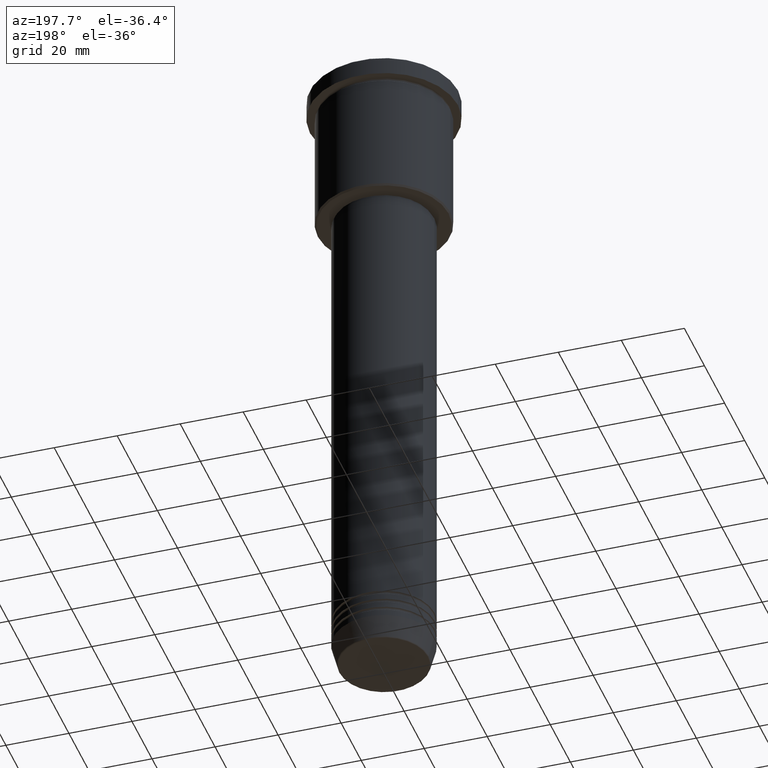
[diagram: clean part render]
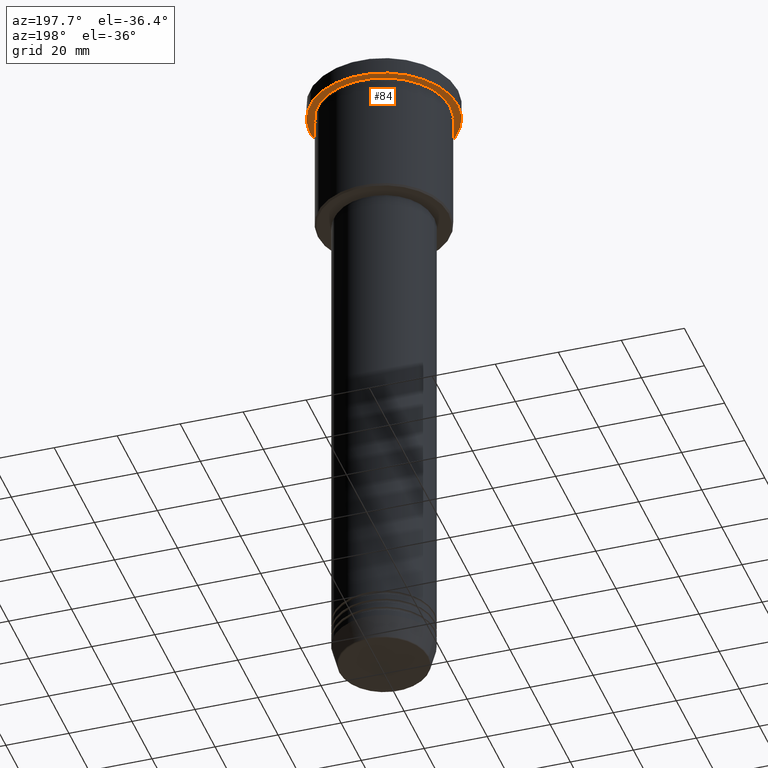
[diagram: same view with one face highlighted and labeled with its STEP entity id]
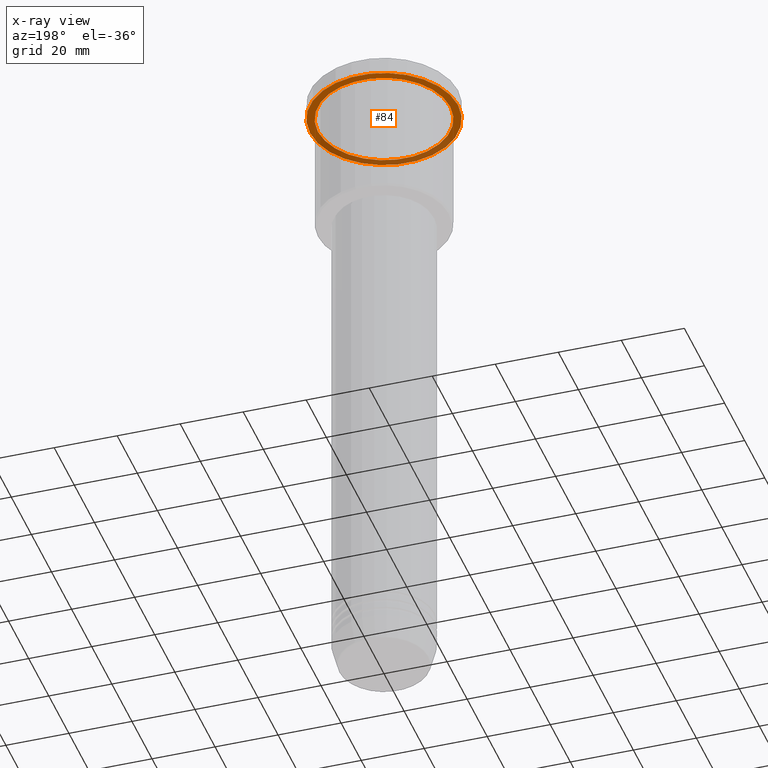
[diagram: x-ray of the same camera — body ghosted, the highlighted face saturated]
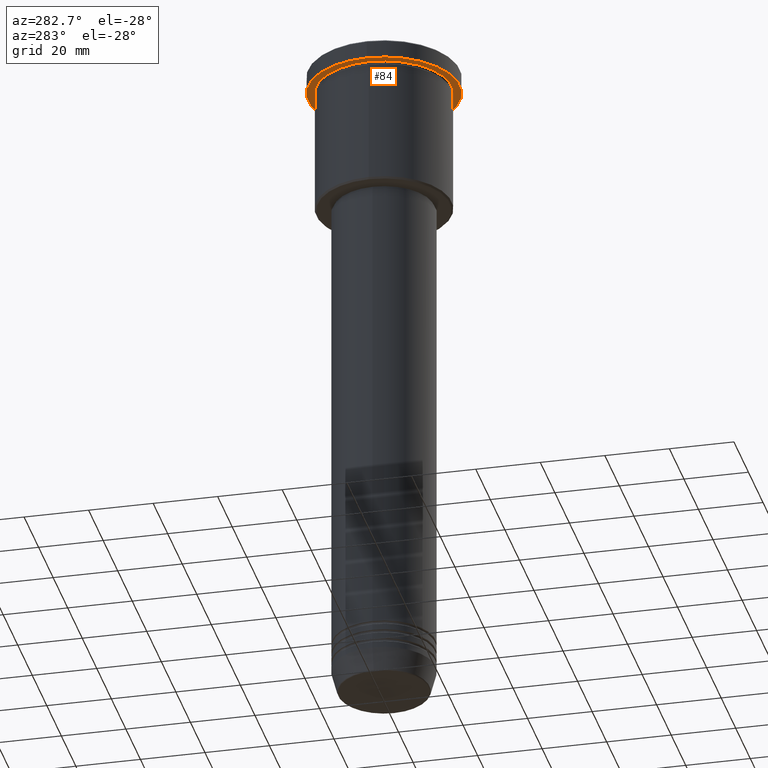
[diagram: same view with one face highlighted and labeled with its STEP entity id]
A machine part, auxiliary view. The second image highlights one B-rep face of the part: STEP entity #84.
The next image is the same camera in x-ray: the body ghosted, the highlighted face saturated — about 35% of this face is hidden behind the body in this view.
A second angle (auxiliary view) of the same face is appended — the face is thin or edge-on in the first view.
In plain terms, the highlighted planar face has unit normal (0, 0, -1).
Its self-contained STEP definition (entity closure, byte-faithful):
#3 = DIRECTION ( 'NONE',  ( -1.000000000000000000, 0.000000000000000000, 0.000000000000000000 ) ) ;
#49 = AXIS2_PLACEMENT_3D ( 'NONE', #77, #896, #820 ) ;
#77 = CARTESIAN_POINT ( 'NONE',  ( 0.000000000000000000, 0.000000000000000000, -5.999999999999994671 ) ) ;
#82 = VERTEX_POINT ( 'NONE', #181 ) ;
#84 = ADVANCED_FACE ( 'NONE', ( #1007, #545 ), #928, .T. ) ;
#89 = CIRCLE ( 'NONE', #436, 21.00000000000000000 ) ;
#95 = CARTESIAN_POINT ( 'NONE',  ( 0.000000000000000000, 0.000000000000000000, -5.999999999999994671 ) ) ;
#137 = AXIS2_PLACEMENT_3D ( 'NONE', #464, #911, #842 ) ;
#181 = CARTESIAN_POINT ( 'NONE',  ( 21.00000000000000000, 2.571758278209441661E-15, -5.999999999999994671 ) ) ;
#190 = EDGE_CURVE ( 'NONE', #601, #1139, #863, .T. ) ;
#241 = CARTESIAN_POINT ( 'NONE',  ( 0.000000000000000000, 0.000000000000000000, -5.999999999999994671 ) ) ;
#255 = ORIENTED_EDGE ( 'NONE', *, *, #862, .T. ) ;
#314 = VERTEX_POINT ( 'NONE', #912 ) ;
#350 = EDGE_LOOP ( 'NONE', ( #255, #391 ) ) ;
#378 = AXIS2_PLACEMENT_3D ( 'NONE', #241, #503, #1071 ) ;
#391 = ORIENTED_EDGE ( 'NONE', *, *, #692, .T. ) ;
#410 = CARTESIAN_POINT ( 'NONE',  ( 23.50000000000000000, 0.000000000000000000, -5.999999999999994671 ) ) ;
#436 = AXIS2_PLACEMENT_3D ( 'NONE', #638, #1179, #3 ) ;
#464 = CARTESIAN_POINT ( 'NONE',  ( 0.000000000000000000, 23.50000000000000000, -5.999999999999994671 ) ) ;
#503 = DIRECTION ( 'NONE',  ( -0.000000000000000000, -0.000000000000000000, 1.000000000000000000 ) ) ;
#545 = FACE_OUTER_BOUND ( 'NONE', #1174, .T. ) ;
#573 = ORIENTED_EDGE ( 'NONE', *, *, #848, .F. ) ;
#601 = VERTEX_POINT ( 'NONE', #410 ) ;
#638 = CARTESIAN_POINT ( 'NONE',  ( 0.000000000000000000, 0.000000000000000000, -5.999999999999994671 ) ) ;
#652 = CIRCLE ( 'NONE', #954, 23.50000000000000000 ) ;
#692 = EDGE_CURVE ( 'NONE', #82, #314, #905, .T. ) ;
#819 = DIRECTION ( 'NONE',  ( -0.000000000000000000, -0.000000000000000000, 1.000000000000000000 ) ) ;
#820 = DIRECTION ( 'NONE',  ( -1.000000000000000000, 0.000000000000000000, 0.000000000000000000 ) ) ;
#842 = DIRECTION ( 'NONE',  ( -1.000000000000000000, 0.000000000000000000, -0.000000000000000000 ) ) ;
#848 = EDGE_CURVE ( 'NONE', #1139, #601, #652, .T. ) ;
#862 = EDGE_CURVE ( 'NONE', #314, #82, #89, .T. ) ;
#863 = CIRCLE ( 'NONE', #378, 23.50000000000000000 ) ;
#896 = DIRECTION ( 'NONE',  ( -0.000000000000000000, -0.000000000000000000, 1.000000000000000000 ) ) ;
#905 = CIRCLE ( 'NONE', #49, 21.00000000000000000 ) ;
#911 = DIRECTION ( 'NONE',  ( 0.000000000000000000, 0.000000000000000000, -1.000000000000000000 ) ) ;
#912 = CARTESIAN_POINT ( 'NONE',  ( -21.00000000000000000, 0.000000000000000000, -5.999999999999994671 ) ) ;
#918 = DIRECTION ( 'NONE',  ( 1.000000000000000000, 0.000000000000000000, 0.000000000000000000 ) ) ;
#928 = PLANE ( 'NONE',  #137 ) ;
#954 = AXIS2_PLACEMENT_3D ( 'NONE', #95, #819, #918 ) ;
#968 = ORIENTED_EDGE ( 'NONE', *, *, #190, .F. ) ;
#1007 = FACE_BOUND ( 'NONE', #350, .T. ) ;
#1070 = CARTESIAN_POINT ( 'NONE',  ( -23.50000000000000000, 2.877919977996280320E-15, -5.999999999999994671 ) ) ;
#1071 = DIRECTION ( 'NONE',  ( 1.000000000000000000, 0.000000000000000000, 0.000000000000000000 ) ) ;
#1139 = VERTEX_POINT ( 'NONE', #1070 ) ;
#1174 = EDGE_LOOP ( 'NONE', ( #968, #573 ) ) ;
#1179 = DIRECTION ( 'NONE',  ( -0.000000000000000000, -0.000000000000000000, 1.000000000000000000 ) ) ;